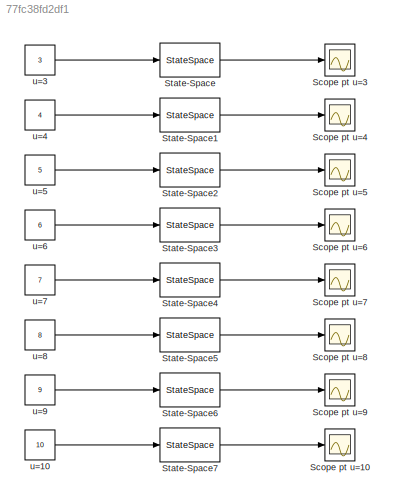
MODEL slx_77fc38fd2df1
KIND model
CONFIG AbsTol = auto
CONFIG EnableMultiTasking = off
CONFIG FixedStep = auto
CONFIG MaxStep = auto
CONFIG MinStep = auto
CONFIG RelTol = 1e-3
CONFIG SampleTimeConstraint = Unconstrained
CONFIG SolverName = VariableStepAuto
CONFIG StartTime = 0.0
CONFIG StopTime = 60
BLOCK [Scope] Scope pt u=10
  Floating = off
  NumInputPorts = 1
  ScopeSpecificationString = Simulink.scopes.TimeScopeBlockCfg('CurrentConfiguration', extmgr.ConfigurationSet(extmgr.Configuration('Core','General UI',true),extmgr.Configuration('Core','Source UI',true),extmgr.Configuration('Sources','WiredSimulink',true,'DataLoggingVariableName','ScopeData7'),extmgr.Configuration('Visuals','Time Domain',true,'SerializedDisplays',{struct('MinYLimReal','-0.07595','MaxYLimReal','0.68355','YLab...<+1405ch>
BLOCK [Scope] Scope pt u=3
  Floating = off
  NumInputPorts = 1
  ScopeSpecificationString = Simulink.scopes.TimeScopeBlockCfg('CurrentConfiguration', extmgr.ConfigurationSet(extmgr.Configuration('Core','General UI',true),extmgr.Configuration('Core','Source UI',true),extmgr.Configuration('Sources','WiredSimulink',true),extmgr.Configuration('Visuals','Time Domain',true,'SerializedDisplays',{struct('MinYLimReal','-0.02279','MaxYLimReal','0.20507','YLabelReal','','MinYLimMag','0.00000','MaxY...<+1368ch>
BLOCK [Scope] Scope pt u=4
  Floating = off
  NumInputPorts = 1
  ScopeSpecificationString = Simulink.scopes.TimeScopeBlockCfg('CurrentConfiguration', extmgr.ConfigurationSet(extmgr.Configuration('Core','General UI',true),extmgr.Configuration('Core','Source UI',true),extmgr.Configuration('Sources','WiredSimulink',true,'DataLoggingVariableName','ScopeData1'),extmgr.Configuration('Visuals','Time Domain',true,'SerializedDisplays',{struct('MinYLimReal','-0.03038','MaxYLimReal','0.27342','YLab...<+1404ch>
BLOCK [Scope] Scope pt u=5
  Floating = off
  NumInputPorts = 1
  ScopeSpecificationString = Simulink.scopes.TimeScopeBlockCfg('CurrentConfiguration', extmgr.ConfigurationSet(extmgr.Configuration('Core','General UI',true),extmgr.Configuration('Core','Source UI',true),extmgr.Configuration('Sources','WiredSimulink',true,'DataLoggingVariableName','ScopeData2'),extmgr.Configuration('Visuals','Time Domain',true,'SerializedDisplays',{struct('MinYLimReal','-0.03798','MaxYLimReal','0.34178','YLab...<+1405ch>
BLOCK [Scope] Scope pt u=6
  Floating = off
  NumInputPorts = 1
  ScopeSpecificationString = Simulink.scopes.TimeScopeBlockCfg('CurrentConfiguration', extmgr.ConfigurationSet(extmgr.Configuration('Core','General UI',true),extmgr.Configuration('Core','Source UI',true),extmgr.Configuration('Sources','WiredSimulink',true,'DataLoggingVariableName','ScopeData3'),extmgr.Configuration('Visuals','Time Domain',true,'SerializedDisplays',{struct('MinYLimReal','-0.04557','MaxYLimReal','0.41013','YLab...<+1404ch>
BLOCK [Scope] Scope pt u=7
  Floating = off
  NumInputPorts = 1
  ScopeSpecificationString = Simulink.scopes.TimeScopeBlockCfg('CurrentConfiguration', extmgr.ConfigurationSet(extmgr.Configuration('Core','General UI',true),extmgr.Configuration('Core','Source UI',true),extmgr.Configuration('Sources','WiredSimulink',true,'DataLoggingVariableName','ScopeData4'),extmgr.Configuration('Visuals','Time Domain',true,'SerializedDisplays',{struct('MinYLimReal','-0.05317','MaxYLimReal','0.47849','YLab...<+1371ch>
BLOCK [Scope] Scope pt u=8
  Floating = off
  NumInputPorts = 1
  ScopeSpecificationString = Simulink.scopes.TimeScopeBlockCfg('CurrentConfiguration', extmgr.ConfigurationSet(extmgr.Configuration('Core','General UI',true),extmgr.Configuration('Core','Source UI',true),extmgr.Configuration('Sources','WiredSimulink',true,'DataLoggingVariableName','ScopeData5'),extmgr.Configuration('Visuals','Time Domain',true,'SerializedDisplays',{struct('MinYLimReal','-0.06076','MaxYLimReal','0.54684','YLab...<+1404ch>
BLOCK [Scope] Scope pt u=9
  Floating = off
  NumInputPorts = 1
  ScopeSpecificationString = Simulink.scopes.TimeScopeBlockCfg('CurrentConfiguration', extmgr.ConfigurationSet(extmgr.Configuration('Core','General UI',true),extmgr.Configuration('Core','Source UI',true),extmgr.Configuration('Sources','WiredSimulink',true,'DataLoggingVariableName','ScopeData6'),extmgr.Configuration('Visuals','Time Domain',true,'SerializedDisplays',{struct('MinYLimReal','-0.06836','MaxYLimReal','0.6152','YLabe...<+1396ch>
BLOCK [StateSpace] State-Space
  A = A1
  B = B1
  C = C1
  D = D1
  InitialCondition = 0
BLOCK [StateSpace] State-Space1
  A = A21
  B = B2
  C = C2
  D = D2
  InitialCondition = 0
BLOCK [StateSpace] State-Space2
  A = A3
  B = B3
  C = C3
  D = D3
  InitialCondition = 0
BLOCK [StateSpace] State-Space3
  A = A4
  B = B4
  C = C4
  D = D4
  InitialCondition = 0
BLOCK [StateSpace] State-Space4
  A = A5
  B = B5
  C = C5
  D = D5
  InitialCondition = 0
BLOCK [StateSpace] State-Space5
  A = A6
  B = B6
  C = C6
  D = D6
  InitialCondition = 0
BLOCK [StateSpace] State-Space6
  A = A7
  B = B7
  C = C7
  D = D7
  InitialCondition = 0
BLOCK [StateSpace] State-Space7
  A = A8
  B = B8
  C = C8
  D = D8
  InitialCondition = 0
BLOCK [Constant] u=10
  Value = 10
BLOCK [Constant] u=3
  Value = 3
BLOCK [Constant] u=4
  Value = 4
BLOCK [Constant] u=5
  Value = 5
BLOCK [Constant] u=6
  Value = 6
BLOCK [Constant] u=7
  Value = 7
BLOCK [Constant] u=8
  Value = 8
BLOCK [Constant] u=9
  Value = 9
LINE State-Space1:1 -> Scope pt u=4:1
LINE State-Space2:1 -> Scope pt u=5:1
LINE State-Space3:1 -> Scope pt u=6:1
LINE State-Space4:1 -> Scope pt u=7:1
LINE State-Space5:1 -> Scope pt u=8:1
LINE State-Space6:1 -> Scope pt u=9:1
LINE State-Space7:1 -> Scope pt u=10:1
LINE State-Space:1 -> Scope pt u=3:1
LINE u=10:1 -> State-Space7:1
LINE u=3:1 -> State-Space:1
LINE u=4:1 -> State-Space1:1
LINE u=5:1 -> State-Space2:1
LINE u=6:1 -> State-Space3:1
LINE u=7:1 -> State-Space4:1
LINE u=8:1 -> State-Space5:1
LINE u=9:1 -> State-Space6:1
